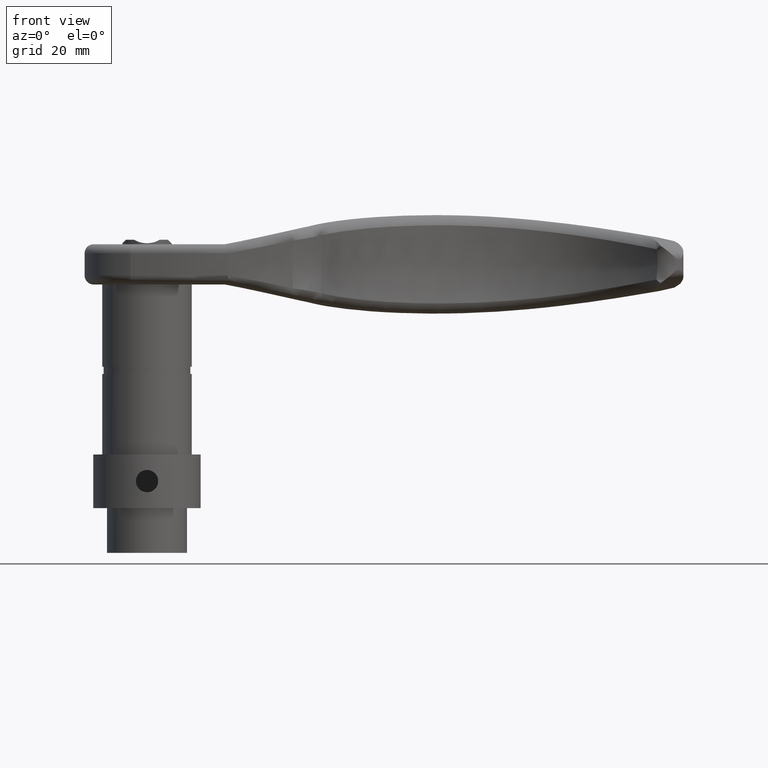
[diagram: clean part render]
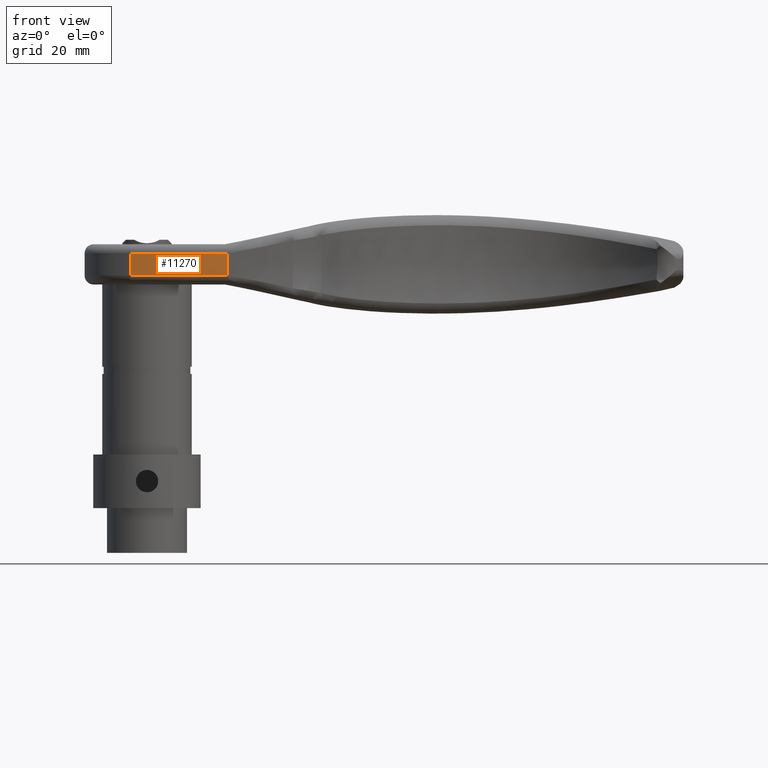
[diagram: same view with one face highlighted and labeled with its STEP entity id]
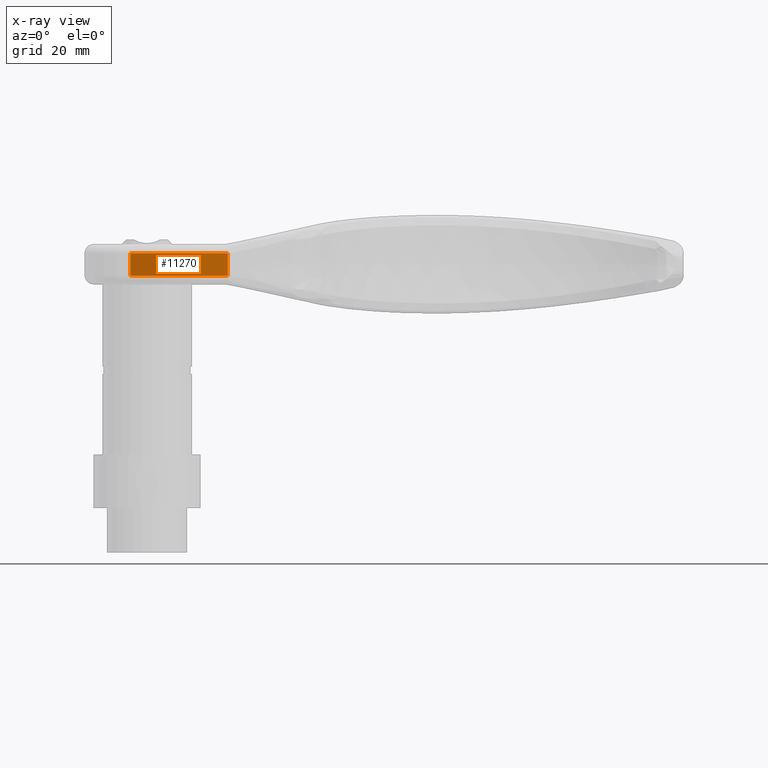
[diagram: x-ray of the same camera — body ghosted, the highlighted face saturated]
A machine part, front view. The second image highlights one B-rep face of the part: STEP entity #11270.
The next image is the same camera in x-ray: the body ghosted, the highlighted face saturated — about 0% of this face is hidden behind the body in this view.
In plain terms, the highlighted cylindrical surface (partial cylindrical patch) has radius 69.6055 mm, axis along (-0, -0, -1).
Its self-contained STEP definition (entity closure, byte-faithful):
#465 = CARTESIAN_POINT ( 'NONE',  ( 18.01676124536311718, -15.92466036302828769, 2.000000000004326317 ) ) ;
#568 = CARTESIAN_POINT ( 'NONE',  ( 14.77910367019704907, 53.60547632360797365, 9.000000000000000000 ) ) ;
#1482 = CARTESIAN_POINT ( 'NONE',  ( 17.99999999999959854, -15.92543882259887056, 2.024206105680200984 ) ) ;
#1645 = DIRECTION ( 'NONE',  ( -1.000000000000000000, 0.000000000000000000, 0.000000000000000000 ) ) ;
#1801 = ORIENTED_EDGE ( 'NONE', *, *, #11460, .T. ) ;
#1895 = VECTOR ( 'NONE', #3079, 1000.000000000000000 ) ;
#2124 = CARTESIAN_POINT ( 'NONE',  ( 18.00000000000004263, -15.92543882259885102, 6.961353415306819059 ) ) ;
#2428 = B_SPLINE_CURVE_WITH_KNOTS ( 'NONE', 3,
 ( #10445, #13723, #11367, #6002 ),
 .UNSPECIFIED., .F., .F.,
 ( 4, 4 ),
 ( 4.336808689942017736E-18, 4.270813510127264255E-05 ),
 .UNSPECIFIED. ) ;
#2559 = EDGE_CURVE ( 'NONE', #11701, #5741, #2428, .T. ) ;
#3028 = ORIENTED_EDGE ( 'NONE', *, *, #5550, .T. ) ;
#3030 = EDGE_CURVE ( 'NONE', #5741, #12901, #6943, .T. ) ;
#3079 = DIRECTION ( 'NONE',  ( -0.000000000000000000, -0.000000000000000000, -1.000000000000000000 ) ) ;
#3085 = DIRECTION ( 'NONE',  ( -0.000000000000000000, -0.000000000000000000, -1.000000000000000000 ) ) ;
#3132 = DIRECTION ( 'NONE',  ( 1.000000000000000000, 0.000000000000000000, 0.000000000000000000 ) ) ;
#3169 = CYLINDRICAL_SURFACE ( 'NONE', #11988, 69.60547632360798787 ) ;
#3587 = CARTESIAN_POINT ( 'NONE',  ( -3.720990540187389506, -13.49645247462591513, 6.999999999999999112 ) ) ;
#4092 = CARTESIAN_POINT ( 'NONE',  ( 18.00000000000004263, -15.92543882259885102, 9.000000000000000000 ) ) ;
#4130 = LINE ( 'NONE', #4092, #1895 ) ;
#4507 = DIRECTION ( 'NONE',  ( 1.000000000000000000, 0.000000000000000000, 0.000000000000000000 ) ) ;
#4548 = FACE_OUTER_BOUND ( 'NONE', #10147, .T. ) ;
#4681 = CARTESIAN_POINT ( 'NONE',  ( 18.01676124536311718, -15.92466036302828769, 2.000000000004326317 ) ) ;
#4838 = EDGE_CURVE ( 'NONE', #11701, #7155, #4130, .T. ) ;
#4912 = VERTEX_POINT ( 'NONE', #11883 ) ;
#5275 = EDGE_CURVE ( 'NONE', #7345, #7155, #10463, .T. ) ;
#5432 = DIRECTION ( 'NONE',  ( -0.000000000000000000, -0.000000000000000000, -1.000000000000000000 ) ) ;
#5550 = EDGE_CURVE ( 'NONE', #12901, #4912, #6112, .T. ) ;
#5741 = VERTEX_POINT ( 'NONE', #10316 ) ;
#6002 = CARTESIAN_POINT ( 'NONE',  ( 18.01676124573284454, -15.92466036301107302, 6.999999999999991118 ) ) ;
#6112 = LINE ( 'NONE', #12120, #6186 ) ;
#6186 = VECTOR ( 'NONE', #5432, 1000.000000000000000 ) ;
#6943 = CIRCLE ( 'NONE', #12412, 69.60547632360798787 ) ;
#7155 = VERTEX_POINT ( 'NONE', #8394 ) ;
#7345 = VERTEX_POINT ( 'NONE', #4681 ) ;
#8255 = AXIS2_PLACEMENT_3D ( 'NONE', #10177, #8995, #4507 ) ;
#8377 = ORIENTED_EDGE ( 'NONE', *, *, #5275, .T. ) ;
#8394 = CARTESIAN_POINT ( 'NONE',  ( 18.00000000000004263, -15.92543882259885102, 2.038646584255680239 ) ) ;
#8995 = DIRECTION ( 'NONE',  ( 0.000000000000000000, 0.000000000000000000, 1.000000000000000000 ) ) ;
#9253 = CARTESIAN_POINT ( 'NONE',  ( 18.00784631877854380, -15.92507548488715230, 2.011209940228398718 ) ) ;
#9647 = ORIENTED_EDGE ( 'NONE', *, *, #3030, .T. ) ;
#9895 = CARTESIAN_POINT ( 'NONE',  ( 14.77910367019704907, 53.60547632360797365, 6.999999999999999112 ) ) ;
#10147 = EDGE_LOOP ( 'NONE', ( #3028, #1801, #8377, #13901, #12911, #9647 ) ) ;
#10177 = CARTESIAN_POINT ( 'NONE',  ( 14.77910367019704907, 53.60547632360797365, 2.000000000000000000 ) ) ;
#10316 = CARTESIAN_POINT ( 'NONE',  ( 18.01676124573284454, -15.92466036301107302, 6.999999999999991118 ) ) ;
#10445 = CARTESIAN_POINT ( 'NONE',  ( 18.00000000000004263, -15.92543882259885102, 6.961353415306819059 ) ) ;
#10463 = B_SPLINE_CURVE_WITH_KNOTS ( 'NONE', 3,
 ( #465, #9253, #1482, #13755 ),
 .UNSPECIFIED., .F., .F.,
 ( 4, 4 ),
 ( 0.007005233015142497098, 0.007047930236566115648 ),
 .UNSPECIFIED. ) ;
#11270 = ADVANCED_FACE ( 'NONE', ( #4548 ), #3169, .T. ) ;
#11367 = CARTESIAN_POINT ( 'NONE',  ( 18.00782995900123495, -15.92507624667713273, 6.988769488050738943 ) ) ;
#11460 = EDGE_CURVE ( 'NONE', #4912, #7345, #13959, .T. ) ;
#11698 = DIRECTION ( 'NONE',  ( -0.000000000000000000, -0.000000000000000000, -1.000000000000000000 ) ) ;
#11701 = VERTEX_POINT ( 'NONE', #2124 ) ;
#11883 = CARTESIAN_POINT ( 'NONE',  ( -3.720990540187389506, -13.49645247462591513, 2.000000000000000000 ) ) ;
#11988 = AXIS2_PLACEMENT_3D ( 'NONE', #568, #11698, #1645 ) ;
#12120 = CARTESIAN_POINT ( 'NONE',  ( -3.720990540187389506, -13.49645247462591513, 9.000000000000000000 ) ) ;
#12412 = AXIS2_PLACEMENT_3D ( 'NONE', #9895, #3085, #3132 ) ;
#12901 = VERTEX_POINT ( 'NONE', #3587 ) ;
#12911 = ORIENTED_EDGE ( 'NONE', *, *, #2559, .T. ) ;
#13723 = CARTESIAN_POINT ( 'NONE',  ( 18.00000000000001421, -15.92543882259884747, 6.975882392224174389 ) ) ;
#13755 = CARTESIAN_POINT ( 'NONE',  ( 18.00000000000004263, -15.92543882259885102, 2.038646584255680239 ) ) ;
#13901 = ORIENTED_EDGE ( 'NONE', *, *, #4838, .F. ) ;
#13959 = CIRCLE ( 'NONE', #8255, 69.60547632360798787 ) ;